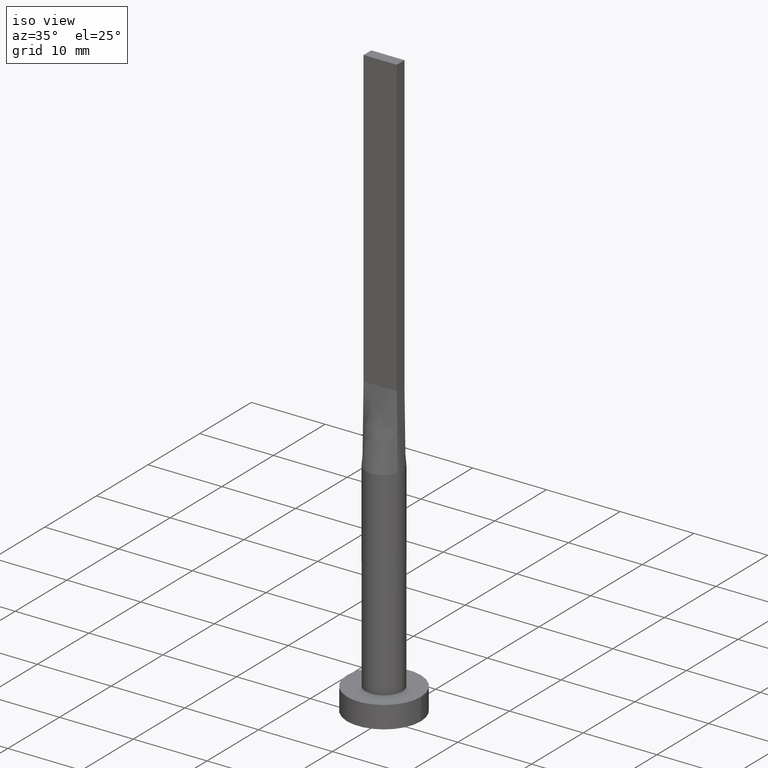
[diagram: clean part render]
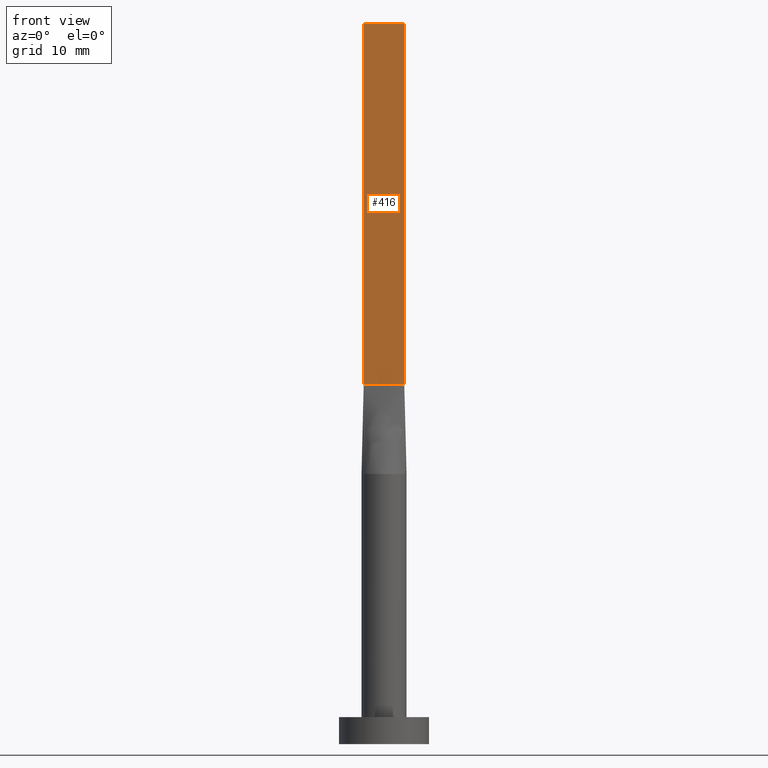
[diagram: tour spotlight — one face highlighted and labeled with its STEP entity id]
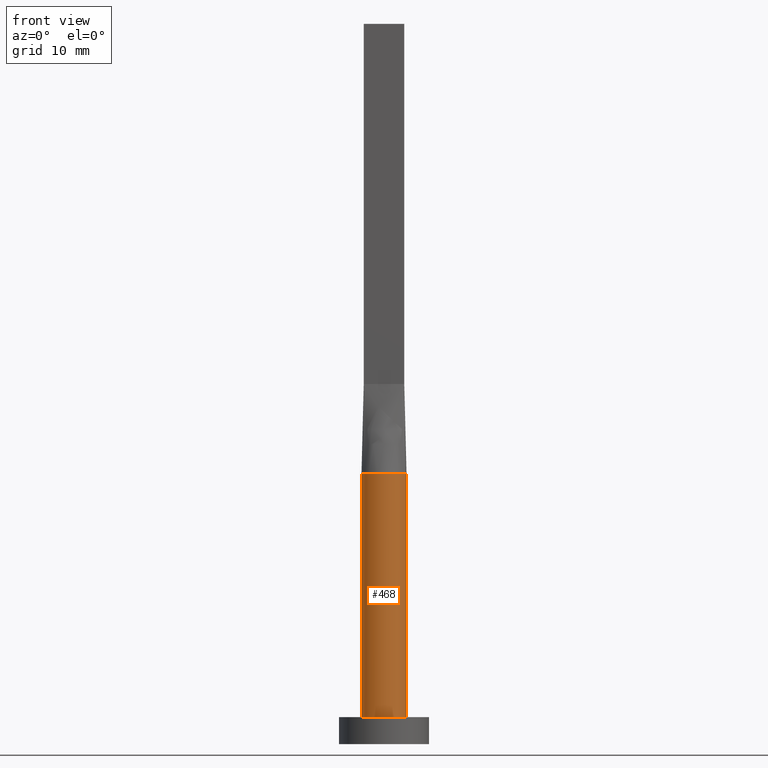
[diagram: tour spotlight — one face highlighted and labeled with its STEP entity id]
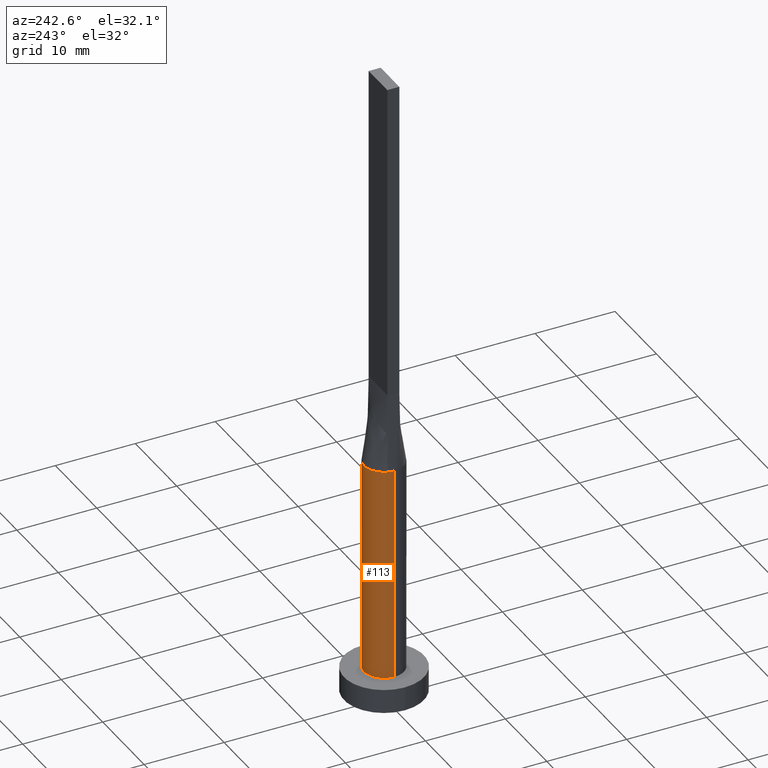
[diagram: tour spotlight — one face highlighted and labeled with its STEP entity id]
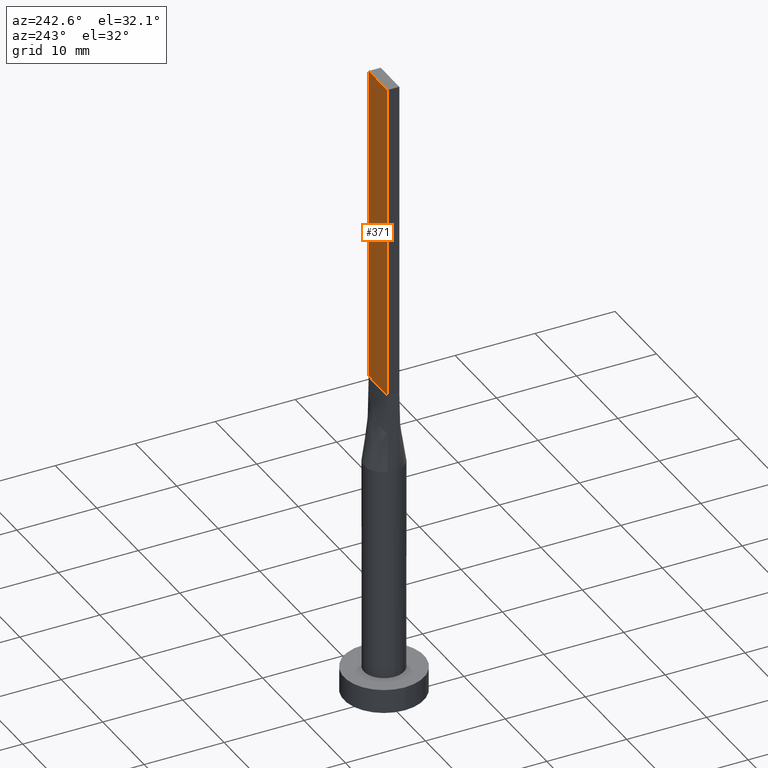
[diagram: tour spotlight — one face highlighted and labeled with its STEP entity id]
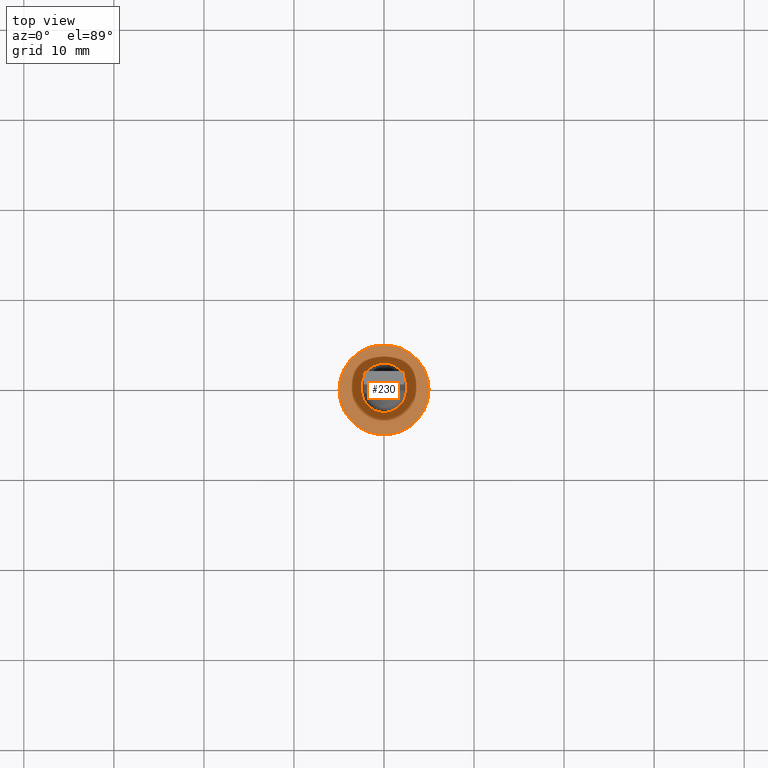
[diagram: tour spotlight — one face highlighted and labeled with its STEP entity id]
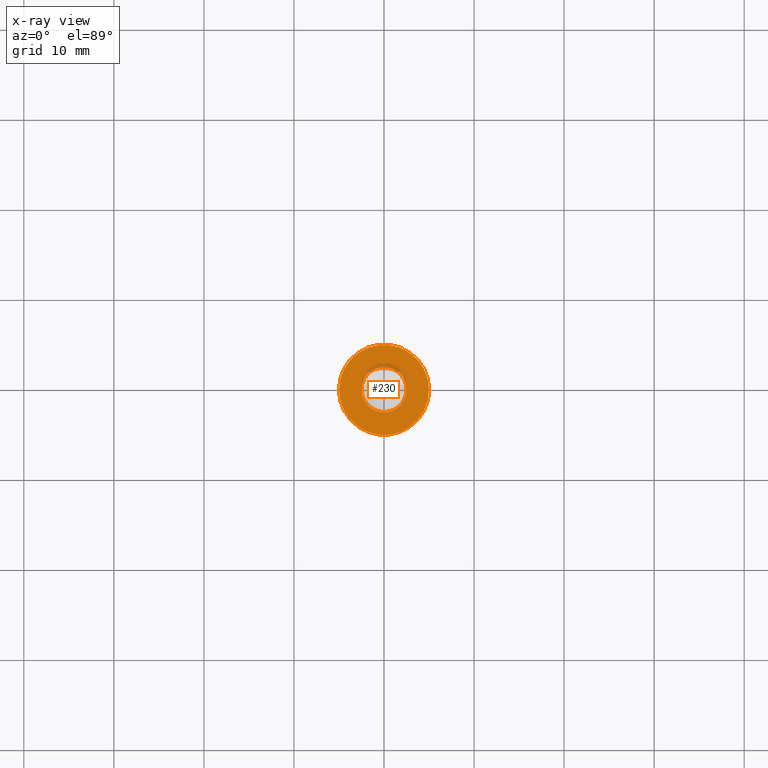
[diagram: x-ray of the same camera — body ghosted, this tour face saturated]
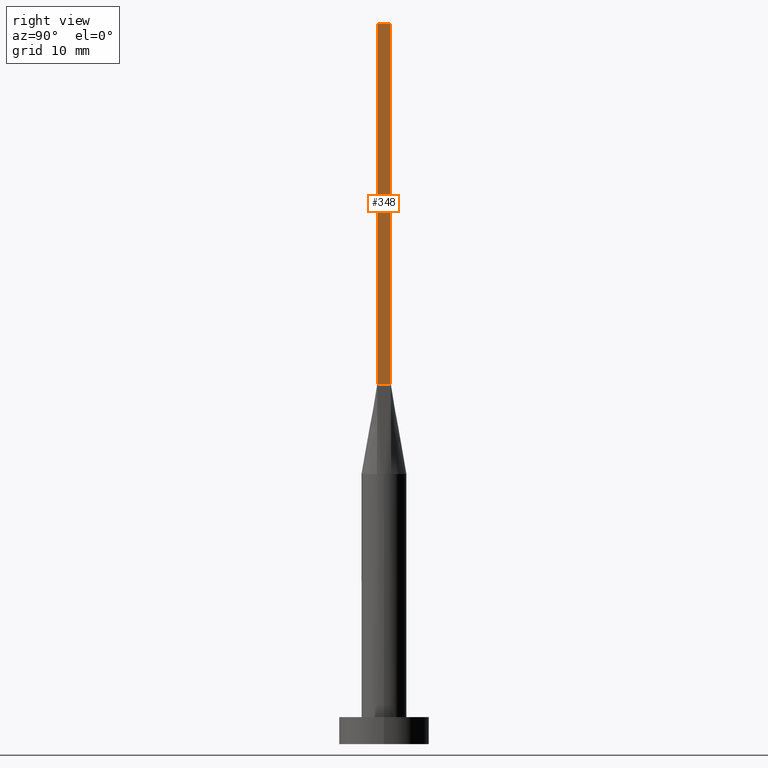
[diagram: tour spotlight — one face highlighted and labeled with its STEP entity id]
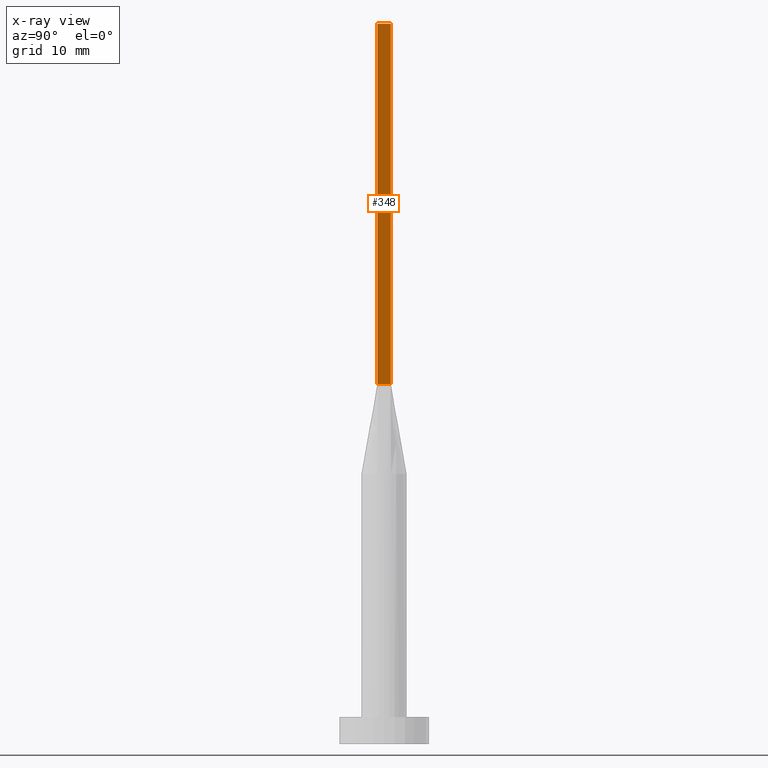
[diagram: x-ray of the same camera — body ghosted, this tour face saturated]
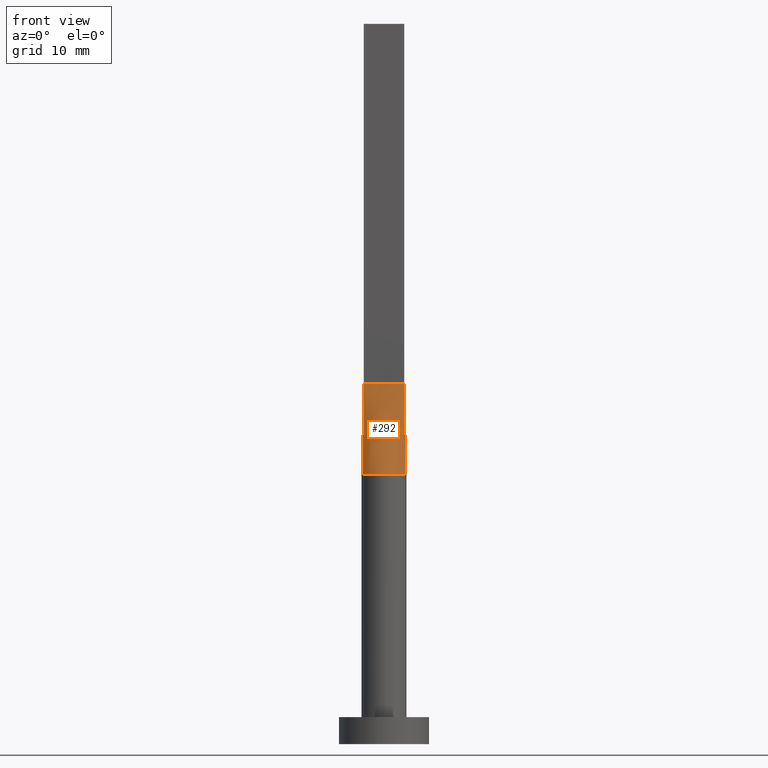
[diagram: tour spotlight — one face highlighted and labeled with its STEP entity id]
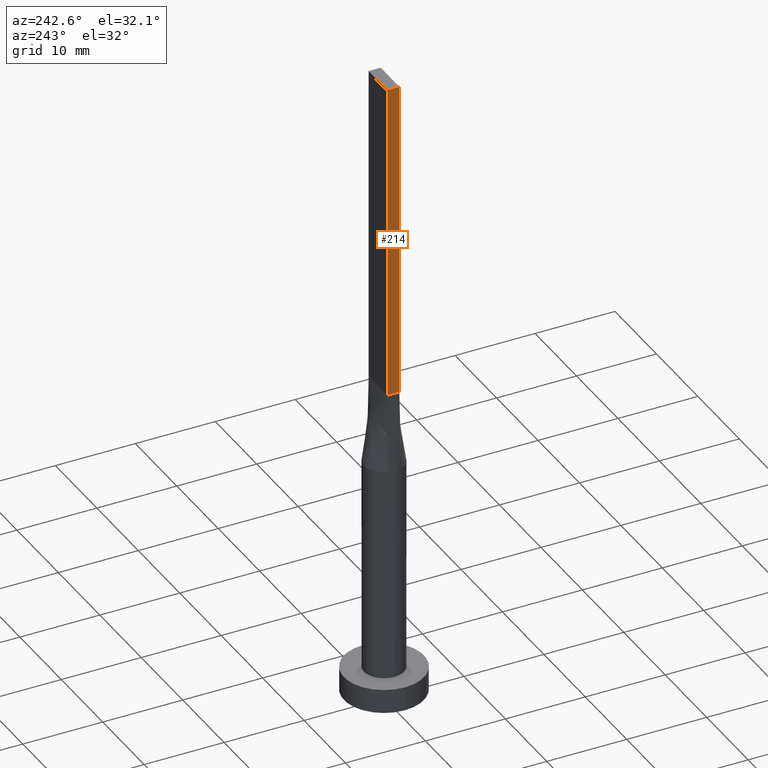
[diagram: tour spotlight — one face highlighted and labeled with its STEP entity id]
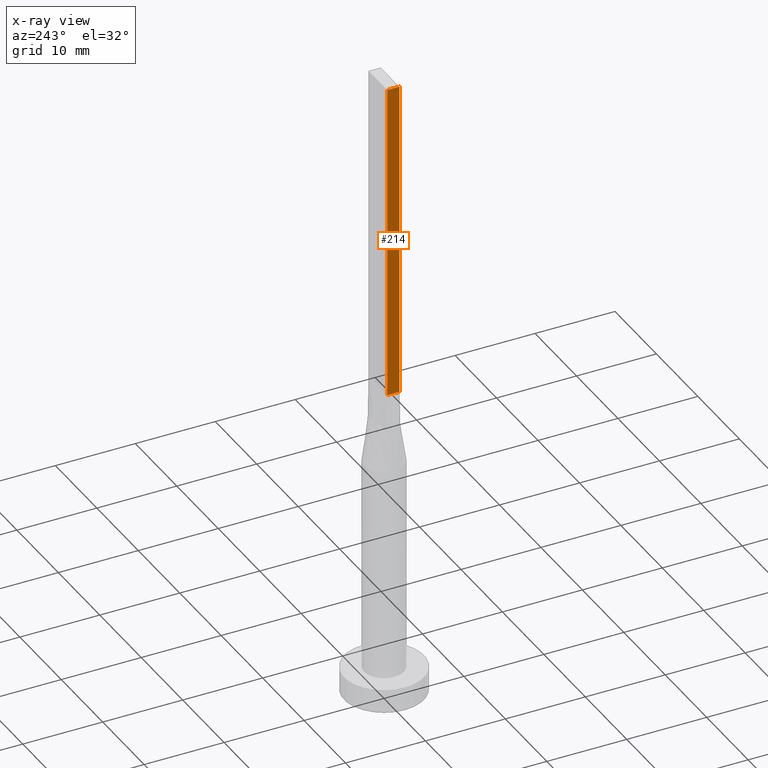
[diagram: x-ray of the same camera — body ghosted, this tour face saturated]
A machine part: a face-by-face anatomy tour. The part has 15 B-rep faces; the first image is the clean iso view, then the 8 largest visible faces are spotlighted one at a time (largest first), each with its STEP entity span.

Face 1 — front view, entity #416. In plain terms, the highlighted planar face has unit normal (0, 1, -0).
Definition (entity closure, byte-faithful):
#7 = CARTESIAN_POINT ( 'NONE',  ( -2.250000000000000000, -0.7499999999999995559, 80.00000000000000000 ) ) ;
#21 = CARTESIAN_POINT ( 'NONE',  ( 2.250000000000000000, -0.7499999999999997780, 80.00000000000000000 ) ) ;
#22 = CARTESIAN_POINT ( 'NONE',  ( 2.250000000000000000, -0.7499999999999997780, 40.00000000000000000 ) ) ;
#45 = EDGE_LOOP ( 'NONE', ( #133, #531, #490, #492 ) ) ;
#53 = VERTEX_POINT ( 'NONE', #138 ) ;
#74 = VECTOR ( 'NONE', #317, 1000.000000000000000 ) ;
#104 = DIRECTION ( 'NONE',  ( 4.818676322157797621E-17, 1.000000000000000000, -0.000000000000000000 ) ) ;
#133 = ORIENTED_EDGE ( 'NONE', *, *, #474, .T. ) ;
#138 = CARTESIAN_POINT ( 'NONE',  ( -2.250000000000000000, -0.7499999999999995559, 80.00000000000000000 ) ) ;
#142 = CARTESIAN_POINT ( 'NONE',  ( -2.250000000000000000, -0.7499999999999995559, 80.00000000000000000 ) ) ;
#161 = DIRECTION ( 'NONE',  ( -0.000000000000000000, -0.000000000000000000, -1.000000000000000000 ) ) ;
#168 = VECTOR ( 'NONE', #161, 1000.000000000000000 ) ;
#173 = VERTEX_POINT ( 'NONE', #22 ) ;
#244 = VERTEX_POINT ( 'NONE', #427 ) ;
#247 = CARTESIAN_POINT ( 'NONE',  ( -2.250000000000000000, -0.7499999999999995559, 40.00000000000000000 ) ) ;
#255 = VECTOR ( 'NONE', #445, 1000.000000000000000 ) ;
#270 = LINE ( 'NONE', #401, #74 ) ;
#279 = DIRECTION ( 'NONE',  ( -1.000000000000000000, 4.818676322157797621E-17, 0.000000000000000000 ) ) ;
#317 = DIRECTION ( 'NONE',  ( 1.000000000000000000, -4.818676322157797621E-17, 0.000000000000000000 ) ) ;
#323 = CARTESIAN_POINT ( 'NONE',  ( 2.250000000000000000, -0.7499999999999997780, 80.00000000000000000 ) ) ;
#351 = LINE ( 'NONE', #7, #255 ) ;
#360 = FACE_OUTER_BOUND ( 'NONE', #45, .T. ) ;
#391 = EDGE_CURVE ( 'NONE', #53, #476, #270, .T. ) ;
#401 = CARTESIAN_POINT ( 'NONE',  ( -2.250000000000000000, -0.7499999999999995559, 80.00000000000000000 ) ) ;
#408 = EDGE_CURVE ( 'NONE', #53, #244, #351, .T. ) ;
#416 = ADVANCED_FACE ( 'NONE', ( #360 ), #544, .F. ) ;
#424 = LINE ( 'NONE', #323, #168 ) ;
#427 = CARTESIAN_POINT ( 'NONE',  ( -2.250000000000000000, -0.7499999999999995559, 40.00000000000000000 ) ) ;
#445 = DIRECTION ( 'NONE',  ( -0.000000000000000000, -0.000000000000000000, -1.000000000000000000 ) ) ;
#456 = LINE ( 'NONE', #247, #564 ) ;
#457 = EDGE_CURVE ( 'NONE', #476, #173, #424, .T. ) ;
#474 = EDGE_CURVE ( 'NONE', #244, #173, #456, .T. ) ;
#476 = VERTEX_POINT ( 'NONE', #21 ) ;
#490 = ORIENTED_EDGE ( 'NONE', *, *, #391, .F. ) ;
#492 = ORIENTED_EDGE ( 'NONE', *, *, #408, .T. ) ;
#526 = AXIS2_PLACEMENT_3D ( 'NONE', #142, #104, #279 ) ;
#531 = ORIENTED_EDGE ( 'NONE', *, *, #457, .F. ) ;
#544 = PLANE ( 'NONE',  #526 ) ;
#558 = DIRECTION ( 'NONE',  ( 1.000000000000000000, -4.818676322157797621E-17, 0.000000000000000000 ) ) ;
#564 = VECTOR ( 'NONE', #558, 1000.000000000000000 ) ;

Face 2 — front view, entity #468. In plain terms, the highlighted cylindrical surface (edge-blend (fillet) strip) has radius 2.5 mm, axis along (-0, -0, -1).
Definition (entity closure, byte-faithful):
#23 = AXIS2_PLACEMENT_3D ( 'NONE', #500, #331, #552 ) ;
#39 = VERTEX_POINT ( 'NONE', #234 ) ;
#43 = EDGE_CURVE ( 'NONE', #311, #346, #59, .T. ) ;
#59 = LINE ( 'NONE', #410, #114 ) ;
#60 = CARTESIAN_POINT ( 'NONE',  ( -2.500000000000000444, -1.570839010700814298E-16, 30.00000000000000000 ) ) ;
#65 = CARTESIAN_POINT ( 'NONE',  ( 0.000000000000000000, 0.000000000000000000, 30.00000000000000000 ) ) ;
#76 = VECTOR ( 'NONE', #464, 1000.000000000000000 ) ;
#95 = CIRCLE ( 'NONE', #413, 2.500000000000000000 ) ;
#103 = AXIS2_PLACEMENT_3D ( 'NONE', #504, #377, #512 ) ;
#114 = VECTOR ( 'NONE', #539, 1000.000000000000000 ) ;
#136 = EDGE_CURVE ( 'NONE', #446, #311, #149, .T. ) ;
#148 = CIRCLE ( 'NONE', #23, 2.500000000000000000 ) ;
#149 = CIRCLE ( 'NONE', #103, 2.500000000000000000 ) ;
#152 = CARTESIAN_POINT ( 'NONE',  ( -2.371775648085652222, -0.7905922034696525325, 30.00000000000000000 ) ) ;
#167 = LINE ( 'NONE', #459, #76 ) ;
#187 = CIRCLE ( 'NONE', #567, 2.500000000000000000 ) ;
#206 = EDGE_CURVE ( 'NONE', #437, #39, #167, .T. ) ;
#212 = CARTESIAN_POINT ( 'NONE',  ( 0.000000000000000000, 0.000000000000000000, 30.00000000000000000 ) ) ;
#219 = DIRECTION ( 'NONE',  ( 1.000000000000000000, 0.000000000000000000, 0.000000000000000000 ) ) ;
#224 = CARTESIAN_POINT ( 'NONE',  ( 2.500000000000000000, 3.061616997868383141E-16, 3.000000000000000000 ) ) ;
#233 = CARTESIAN_POINT ( 'NONE',  ( 2.371798206859841329, -0.7905998626979697796, 30.00000000000000000 ) ) ;
#234 = CARTESIAN_POINT ( 'NONE',  ( -2.500000000000000000, 0.000000000000000000, 3.000000000000000000 ) ) ;
#236 = EDGE_CURVE ( 'NONE', #565, #446, #187, .T. ) ;
#254 = ORIENTED_EDGE ( 'NONE', *, *, #206, .T. ) ;
#260 = CARTESIAN_POINT ( 'NONE',  ( 0.000000000000000000, 0.000000000000000000, 30.00000000000000000 ) ) ;
#281 = EDGE_CURVE ( 'NONE', #437, #565, #95, .T. ) ;
#296 = DIRECTION ( 'NONE',  ( 1.000000000000000000, 0.000000000000000000, 0.000000000000000000 ) ) ;
#311 = VERTEX_POINT ( 'NONE', #386 ) ;
#321 = CYLINDRICAL_SURFACE ( 'NONE', #527, 2.500000000000000000 ) ;
#331 = DIRECTION ( 'NONE',  ( 0.000000000000000000, 0.000000000000000000, 1.000000000000000000 ) ) ;
#340 = ORIENTED_EDGE ( 'NONE', *, *, #236, .F. ) ;
#346 = VERTEX_POINT ( 'NONE', #224 ) ;
#349 = DIRECTION ( 'NONE',  ( 0.000000000000000000, 0.000000000000000000, 1.000000000000000000 ) ) ;
#377 = DIRECTION ( 'NONE',  ( 0.000000000000000000, 0.000000000000000000, 1.000000000000000000 ) ) ;
#386 = CARTESIAN_POINT ( 'NONE',  ( 2.499999999999999556, 3.110810548879990207E-17, 30.00000000000000000 ) ) ;
#390 = ORIENTED_EDGE ( 'NONE', *, *, #540, .T. ) ;
#410 = CARTESIAN_POINT ( 'NONE',  ( 2.500000000000000000, 3.061616997868383141E-16, 30.00000000000000000 ) ) ;
#413 = AXIS2_PLACEMENT_3D ( 'NONE', #212, #475, #296 ) ;
#414 = DIRECTION ( 'NONE',  ( -1.000000000000000000, 0.000000000000000000, 0.000000000000000000 ) ) ;
#417 = DIRECTION ( 'NONE',  ( -0.000000000000000000, -0.000000000000000000, -1.000000000000000000 ) ) ;
#437 = VERTEX_POINT ( 'NONE', #60 ) ;
#444 = ORIENTED_EDGE ( 'NONE', *, *, #43, .F. ) ;
#446 = VERTEX_POINT ( 'NONE', #233 ) ;
#459 = CARTESIAN_POINT ( 'NONE',  ( -2.500000000000000000, 0.000000000000000000, 30.00000000000000000 ) ) ;
#464 = DIRECTION ( 'NONE',  ( -0.000000000000000000, -0.000000000000000000, -1.000000000000000000 ) ) ;
#468 = ADVANCED_FACE ( 'NONE', ( #503 ), #321, .T. ) ;
#475 = DIRECTION ( 'NONE',  ( 0.000000000000000000, 0.000000000000000000, 1.000000000000000000 ) ) ;
#495 = ORIENTED_EDGE ( 'NONE', *, *, #281, .F. ) ;
#500 = CARTESIAN_POINT ( 'NONE',  ( 0.000000000000000000, 0.000000000000000000, 3.000000000000000000 ) ) ;
#503 = FACE_OUTER_BOUND ( 'NONE', #523, .T. ) ;
#504 = CARTESIAN_POINT ( 'NONE',  ( 0.000000000000000000, 0.000000000000000000, 30.00000000000000000 ) ) ;
#512 = DIRECTION ( 'NONE',  ( 1.000000000000000000, -4.440892098500626162E-15, 0.000000000000000000 ) ) ;
#523 = EDGE_LOOP ( 'NONE', ( #444, #542, #340, #495, #254, #390 ) ) ;
#527 = AXIS2_PLACEMENT_3D ( 'NONE', #65, #417, #414 ) ;
#539 = DIRECTION ( 'NONE',  ( -0.000000000000000000, -0.000000000000000000, -1.000000000000000000 ) ) ;
#540 = EDGE_CURVE ( 'NONE', #39, #346, #148, .T. ) ;
#542 = ORIENTED_EDGE ( 'NONE', *, *, #136, .F. ) ;
#552 = DIRECTION ( 'NONE',  ( 1.000000000000000000, 0.000000000000000000, 0.000000000000000000 ) ) ;
#565 = VERTEX_POINT ( 'NONE', #152 ) ;
#567 = AXIS2_PLACEMENT_3D ( 'NONE', #260, #349, #219 ) ;

Face 3 — auxiliary view, entity #113. In plain terms, the highlighted cylindrical surface (edge-blend (fillet) strip) has radius 2.5 mm, axis along (-0, -0, -1).
Definition (entity closure, byte-faithful):
#1 = CARTESIAN_POINT ( 'NONE',  ( 1.799471046981194977, 1.755719709239274007, 30.00000000000000355 ) ) ;
#8 = DIRECTION ( 'NONE',  ( 0.000000000000000000, 0.000000000000000000, 1.000000000000000000 ) ) ;
#11 = EDGE_LOOP ( 'NONE', ( #36, #361, #92, #124, #229, #525 ) ) ;
#13 = CARTESIAN_POINT ( 'NONE',  ( 0.000000000000000000, 0.000000000000000000, 30.00000000000000000 ) ) ;
#18 = AXIS2_PLACEMENT_3D ( 'NONE', #330, #249, #553 ) ;
#36 = ORIENTED_EDGE ( 'NONE', *, *, #266, .F. ) ;
#39 = VERTEX_POINT ( 'NONE', #234 ) ;
#43 = EDGE_CURVE ( 'NONE', #311, #346, #59, .T. ) ;
#47 = AXIS2_PLACEMENT_3D ( 'NONE', #462, #370, #68 ) ;
#51 = CARTESIAN_POINT ( 'NONE',  ( -1.390086206340438890, 2.094828891646495883, 30.00000000000000355 ) ) ;
#52 = EDGE_CURVE ( 'NONE', #101, #437, #432, .T. ) ;
#54 = CARTESIAN_POINT ( 'NONE',  ( 2.218933079238281980, 1.174882007252000315, 29.99999999999999289 ) ) ;
#56 = AXIS2_PLACEMENT_3D ( 'NONE', #515, #394, #345 ) ;
#57 = AXIS2_PLACEMENT_3D ( 'NONE', #13, #8, #269 ) ;
#59 = LINE ( 'NONE', #410, #114 ) ;
#60 = CARTESIAN_POINT ( 'NONE',  ( -2.500000000000000444, -1.570839010700814298E-16, 30.00000000000000000 ) ) ;
#68 = DIRECTION ( 'NONE',  ( -1.000000000000000000, 0.000000000000000000, 0.000000000000000000 ) ) ;
#71 = CARTESIAN_POINT ( 'NONE',  ( -2.371795432964766359, 0.7905989074952441964, 30.00000000000000000 ) ) ;
#75 = CYLINDRICAL_SURFACE ( 'NONE', #47, 2.500000000000000000 ) ;
#76 = VECTOR ( 'NONE', #464, 1000.000000000000000 ) ;
#92 = ORIENTED_EDGE ( 'NONE', *, *, #156, .T. ) ;
#93 = CARTESIAN_POINT ( 'NONE',  ( -2.371795432964766359, 0.7905989074952441964, 30.00000000000000000 ) ) ;
#100 = CARTESIAN_POINT ( 'NONE',  ( 1.964343640889990361, 1.563766543189047287, 29.99999999999998934 ) ) ;
#101 = VERTEX_POINT ( 'NONE', #71 ) ;
#113 = ADVANCED_FACE ( 'NONE', ( #324 ), #75, .T. ) ;
#114 = VECTOR ( 'NONE', #539, 1000.000000000000000 ) ;
#124 = ORIENTED_EDGE ( 'NONE', *, *, #206, .F. ) ;
#134 = CARTESIAN_POINT ( 'NONE',  ( 1.145194483530141749, 2.241235424885160921, 30.00000000000000355 ) ) ;
#137 = CARTESIAN_POINT ( 'NONE',  ( -1.964343640889990805, 1.563766543189048175, 30.00000000000000000 ) ) ;
#156 = EDGE_CURVE ( 'NONE', #346, #39, #423, .T. ) ;
#167 = LINE ( 'NONE', #459, #76 ) ;
#183 = CARTESIAN_POINT ( 'NONE',  ( -0.3003163416900526128, 2.499999999999999112, 29.99999999999999645 ) ) ;
#188 = CARTESIAN_POINT ( 'NONE',  ( -2.309208245126284975, 0.9780694150420951027, 30.00000000000000355 ) ) ;
#206 = EDGE_CURVE ( 'NONE', #437, #39, #167, .T. ) ;
#224 = CARTESIAN_POINT ( 'NONE',  ( 2.500000000000000000, 3.061616997868383141E-16, 3.000000000000000000 ) ) ;
#226 = CARTESIAN_POINT ( 'NONE',  ( -2.218933079238281536, 1.174882007251999871, 29.99999999999999645 ) ) ;
#228 = CARTESIAN_POINT ( 'NONE',  ( 2.371772892450305648, 0.7905912578404317159, 30.00000000000000000 ) ) ;
#229 = ORIENTED_EDGE ( 'NONE', *, *, #52, .F. ) ;
#231 = CARTESIAN_POINT ( 'NONE',  ( 2.371772892450305648, 0.7905912578404317159, 30.00000000000000000 ) ) ;
#234 = CARTESIAN_POINT ( 'NONE',  ( -2.500000000000000000, 0.000000000000000000, 3.000000000000000000 ) ) ;
#249 = DIRECTION ( 'NONE',  ( 0.000000000000000000, 0.000000000000000000, 1.000000000000000000 ) ) ;
#266 = EDGE_CURVE ( 'NONE', #311, #430, #507, .T. ) ;
#267 = CARTESIAN_POINT ( 'NONE',  ( 0.3003163416900527238, 2.499999999999999556, 30.00000000000000355 ) ) ;
#269 = DIRECTION ( 'NONE',  ( 1.000000000000000000, 0.000000000000000000, 0.000000000000000000 ) ) ;
#273 = B_SPLINE_CURVE_WITH_KNOTS ( 'NONE', 3,
 ( #228, #534, #54, #100, #1, #541, #134, #452, #267, #183, #310, #319, #51, #497, #137, #226, #188, #93 ),
 .UNSPECIFIED., .F., .F.,
 ( 4, 2, 2, 2, 2, 2, 2, 2, 4 ),
 ( 0.000000000000000000, 0.1250000000000000000, 0.2500000000000000000, 0.3750000000000000000, 0.5000000000000000000, 0.6250000000000000000, 0.7500000000000000000, 0.8750000000000000000, 1.000000000000000000 ),
 .UNSPECIFIED. ) ;
#310 = CARTESIAN_POINT ( 'NONE',  ( -0.6000386972366482663, 2.444291348568452094, 30.00000000000000000 ) ) ;
#311 = VERTEX_POINT ( 'NONE', #386 ) ;
#319 = CARTESIAN_POINT ( 'NONE',  ( -1.145194483530141527, 2.241235424885160921, 29.99999999999999645 ) ) ;
#324 = FACE_OUTER_BOUND ( 'NONE', #11, .T. ) ;
#330 = CARTESIAN_POINT ( 'NONE',  ( 0.000000000000000000, 0.000000000000000000, 3.000000000000000000 ) ) ;
#345 = DIRECTION ( 'NONE',  ( 1.000000000000000000, 0.000000000000000000, 0.000000000000000000 ) ) ;
#346 = VERTEX_POINT ( 'NONE', #224 ) ;
#361 = ORIENTED_EDGE ( 'NONE', *, *, #43, .T. ) ;
#365 = EDGE_CURVE ( 'NONE', #430, #101, #273, .T. ) ;
#370 = DIRECTION ( 'NONE',  ( -0.000000000000000000, -0.000000000000000000, -1.000000000000000000 ) ) ;
#386 = CARTESIAN_POINT ( 'NONE',  ( 2.499999999999999556, 3.110810548879990207E-17, 30.00000000000000000 ) ) ;
#394 = DIRECTION ( 'NONE',  ( 0.000000000000000000, 0.000000000000000000, 1.000000000000000000 ) ) ;
#410 = CARTESIAN_POINT ( 'NONE',  ( 2.500000000000000000, 3.061616997868383141E-16, 30.00000000000000000 ) ) ;
#423 = CIRCLE ( 'NONE', #18, 2.500000000000000000 ) ;
#430 = VERTEX_POINT ( 'NONE', #231 ) ;
#432 = CIRCLE ( 'NONE', #57, 2.500000000000000000 ) ;
#437 = VERTEX_POINT ( 'NONE', #60 ) ;
#452 = CARTESIAN_POINT ( 'NONE',  ( 0.6000386972366480443, 2.444291348568451649, 29.99999999999999645 ) ) ;
#459 = CARTESIAN_POINT ( 'NONE',  ( -2.500000000000000000, 0.000000000000000000, 30.00000000000000000 ) ) ;
#462 = CARTESIAN_POINT ( 'NONE',  ( 0.000000000000000000, 0.000000000000000000, 30.00000000000000000 ) ) ;
#464 = DIRECTION ( 'NONE',  ( -0.000000000000000000, -0.000000000000000000, -1.000000000000000000 ) ) ;
#497 = CARTESIAN_POINT ( 'NONE',  ( -1.799471046981195199, 1.755719709239274229, 30.00000000000001066 ) ) ;
#507 = CIRCLE ( 'NONE', #56, 2.500000000000000000 ) ;
#515 = CARTESIAN_POINT ( 'NONE',  ( 0.000000000000000000, 0.000000000000000000, 30.00000000000000000 ) ) ;
#525 = ORIENTED_EDGE ( 'NONE', *, *, #365, .F. ) ;
#534 = CARTESIAN_POINT ( 'NONE',  ( 2.309208245126284975, 0.9780694150420948807, 29.99999999999999645 ) ) ;
#539 = DIRECTION ( 'NONE',  ( -0.000000000000000000, -0.000000000000000000, -1.000000000000000000 ) ) ;
#541 = CARTESIAN_POINT ( 'NONE',  ( 1.390086206340439112, 2.094828891646494995, 30.00000000000000355 ) ) ;
#553 = DIRECTION ( 'NONE',  ( 1.000000000000000000, 0.000000000000000000, 0.000000000000000000 ) ) ;

Face 4 — auxiliary view, entity #371. In plain terms, the highlighted planar face has unit normal (0, -1, 0).
Definition (entity closure, byte-faithful):
#4 = CARTESIAN_POINT ( 'NONE',  ( -2.249999999999999556, 0.7500000000000002220, 80.00000000000000000 ) ) ;
#12 = LINE ( 'NONE', #532, #496 ) ;
#46 = VECTOR ( 'NONE', #185, 1000.000000000000000 ) ;
#58 = LINE ( 'NONE', #353, #129 ) ;
#88 = VERTEX_POINT ( 'NONE', #232 ) ;
#116 = CARTESIAN_POINT ( 'NONE',  ( 2.249999999999999556, 0.7500000000000002220, 80.00000000000000000 ) ) ;
#129 = VECTOR ( 'NONE', #275, 1000.000000000000000 ) ;
#147 = ORIENTED_EDGE ( 'NONE', *, *, #399, .F. ) ;
#185 = DIRECTION ( 'NONE',  ( -0.000000000000000000, -0.000000000000000000, -1.000000000000000000 ) ) ;
#190 = CARTESIAN_POINT ( 'NONE',  ( 2.249999999999999556, 0.7500000000000002220, 80.00000000000000000 ) ) ;
#223 = ORIENTED_EDGE ( 'NONE', *, *, #450, .T. ) ;
#232 = CARTESIAN_POINT ( 'NONE',  ( -2.249999999999999556, 0.7500000000000002220, 80.00000000000000000 ) ) ;
#246 = VECTOR ( 'NONE', #463, 1000.000000000000000 ) ;
#275 = DIRECTION ( 'NONE',  ( -1.000000000000000000, -0.000000000000000000, -0.000000000000000000 ) ) ;
#280 = ORIENTED_EDGE ( 'NONE', *, *, #579, .F. ) ;
#290 = DIRECTION ( 'NONE',  ( -0.000000000000000000, -0.000000000000000000, -1.000000000000000000 ) ) ;
#305 = ORIENTED_EDGE ( 'NONE', *, *, #329, .T. ) ;
#312 = PLANE ( 'NONE',  #448 ) ;
#315 = DIRECTION ( 'NONE',  ( 0.000000000000000000, -1.000000000000000000, 0.000000000000000000 ) ) ;
#329 = EDGE_CURVE ( 'NONE', #573, #352, #58, .T. ) ;
#344 = EDGE_LOOP ( 'NONE', ( #305, #147, #280, #223 ) ) ;
#352 = VERTEX_POINT ( 'NONE', #441 ) ;
#353 = CARTESIAN_POINT ( 'NONE',  ( -2.249999999999999556, 0.7500000000000002220, 40.00000000000000000 ) ) ;
#371 = ADVANCED_FACE ( 'NONE', ( #404 ), #312, .F. ) ;
#399 = EDGE_CURVE ( 'NONE', #88, #352, #491, .T. ) ;
#404 = FACE_OUTER_BOUND ( 'NONE', #344, .T. ) ;
#409 = DIRECTION ( 'NONE',  ( 0.000000000000000000, -0.000000000000000000, -1.000000000000000000 ) ) ;
#422 = VERTEX_POINT ( 'NONE', #447 ) ;
#441 = CARTESIAN_POINT ( 'NONE',  ( -2.249999999999999556, 0.7500000000000002220, 40.00000000000000000 ) ) ;
#447 = CARTESIAN_POINT ( 'NONE',  ( 2.249999999999999556, 0.7500000000000002220, 80.00000000000000000 ) ) ;
#448 = AXIS2_PLACEMENT_3D ( 'NONE', #190, #315, #409 ) ;
#450 = EDGE_CURVE ( 'NONE', #422, #573, #12, .T. ) ;
#463 = DIRECTION ( 'NONE',  ( -1.000000000000000000, 0.000000000000000000, 0.000000000000000000 ) ) ;
#491 = LINE ( 'NONE', #4, #46 ) ;
#496 = VECTOR ( 'NONE', #290, 1000.000000000000000 ) ;
#508 = LINE ( 'NONE', #116, #246 ) ;
#532 = CARTESIAN_POINT ( 'NONE',  ( 2.249999999999999556, 0.7500000000000002220, 80.00000000000000000 ) ) ;
#554 = CARTESIAN_POINT ( 'NONE',  ( 2.249999999999999556, 0.7500000000000002220, 40.00000000000000000 ) ) ;
#573 = VERTEX_POINT ( 'NONE', #554 ) ;
#579 = EDGE_CURVE ( 'NONE', #422, #88, #508, .T. ) ;

Face 5 — top view, entity #230. An x-ray twin of the same camera follows (body ghosted, this face saturated) — the face is partly hidden behind the body. In plain terms, the highlighted planar face has unit normal (0, 0, 1).
Definition (entity closure, byte-faithful):
#18 = AXIS2_PLACEMENT_3D ( 'NONE', #330, #249, #553 ) ;
#23 = AXIS2_PLACEMENT_3D ( 'NONE', #500, #331, #552 ) ;
#39 = VERTEX_POINT ( 'NONE', #234 ) ;
#130 = ORIENTED_EDGE ( 'NONE', *, *, #156, .F. ) ;
#148 = CIRCLE ( 'NONE', #23, 2.500000000000000000 ) ;
#154 = FACE_OUTER_BOUND ( 'NONE', #484, .T. ) ;
#156 = EDGE_CURVE ( 'NONE', #346, #39, #423, .T. ) ;
#158 = PLANE ( 'NONE',  #538 ) ;
#176 = ORIENTED_EDGE ( 'NONE', *, *, #566, .T. ) ;
#200 = DIRECTION ( 'NONE',  ( 0.000000000000000000, 0.000000000000000000, 1.000000000000000000 ) ) ;
#211 = CIRCLE ( 'NONE', #337, 5.000000000000000000 ) ;
#217 = VERTEX_POINT ( 'NONE', #368 ) ;
#224 = CARTESIAN_POINT ( 'NONE',  ( 2.500000000000000000, 3.061616997868383141E-16, 3.000000000000000000 ) ) ;
#230 = ADVANCED_FACE ( 'NONE', ( #551, #154 ), #158, .T. ) ;
#234 = CARTESIAN_POINT ( 'NONE',  ( -2.500000000000000000, 0.000000000000000000, 3.000000000000000000 ) ) ;
#241 = CARTESIAN_POINT ( 'NONE',  ( 0.000000000000000000, 0.000000000000000000, 3.000000000000000000 ) ) ;
#245 = EDGE_CURVE ( 'NONE', #217, #397, #211, .T. ) ;
#249 = DIRECTION ( 'NONE',  ( 0.000000000000000000, 0.000000000000000000, 1.000000000000000000 ) ) ;
#268 = AXIS2_PLACEMENT_3D ( 'NONE', #241, #200, #372 ) ;
#299 = ORIENTED_EDGE ( 'NONE', *, *, #245, .T. ) ;
#327 = CARTESIAN_POINT ( 'NONE',  ( 0.000000000000000000, 0.000000000000000000, 3.000000000000000000 ) ) ;
#330 = CARTESIAN_POINT ( 'NONE',  ( 0.000000000000000000, 0.000000000000000000, 3.000000000000000000 ) ) ;
#331 = DIRECTION ( 'NONE',  ( 0.000000000000000000, 0.000000000000000000, 1.000000000000000000 ) ) ;
#337 = AXIS2_PLACEMENT_3D ( 'NONE', #469, #572, #472 ) ;
#346 = VERTEX_POINT ( 'NONE', #224 ) ;
#368 = CARTESIAN_POINT ( 'NONE',  ( -5.000000000000000000, 0.000000000000000000, 3.000000000000000000 ) ) ;
#372 = DIRECTION ( 'NONE',  ( 1.000000000000000000, 0.000000000000000000, 0.000000000000000000 ) ) ;
#389 = DIRECTION ( 'NONE',  ( 1.000000000000000000, 0.000000000000000000, -0.000000000000000000 ) ) ;
#397 = VERTEX_POINT ( 'NONE', #493 ) ;
#423 = CIRCLE ( 'NONE', #18, 2.500000000000000000 ) ;
#429 = DIRECTION ( 'NONE',  ( 0.000000000000000000, 0.000000000000000000, 1.000000000000000000 ) ) ;
#453 = ORIENTED_EDGE ( 'NONE', *, *, #540, .F. ) ;
#467 = CIRCLE ( 'NONE', #268, 5.000000000000000000 ) ;
#469 = CARTESIAN_POINT ( 'NONE',  ( 0.000000000000000000, 0.000000000000000000, 3.000000000000000000 ) ) ;
#472 = DIRECTION ( 'NONE',  ( 1.000000000000000000, 0.000000000000000000, 0.000000000000000000 ) ) ;
#484 = EDGE_LOOP ( 'NONE', ( #299, #176 ) ) ;
#493 = CARTESIAN_POINT ( 'NONE',  ( 5.000000000000000000, 6.123233995736766282E-16, 3.000000000000000000 ) ) ;
#500 = CARTESIAN_POINT ( 'NONE',  ( 0.000000000000000000, 0.000000000000000000, 3.000000000000000000 ) ) ;
#538 = AXIS2_PLACEMENT_3D ( 'NONE', #327, #429, #389 ) ;
#540 = EDGE_CURVE ( 'NONE', #39, #346, #148, .T. ) ;
#545 = EDGE_LOOP ( 'NONE', ( #453, #130 ) ) ;
#551 = FACE_BOUND ( 'NONE', #545, .T. ) ;
#552 = DIRECTION ( 'NONE',  ( 1.000000000000000000, 0.000000000000000000, 0.000000000000000000 ) ) ;
#553 = DIRECTION ( 'NONE',  ( 1.000000000000000000, 0.000000000000000000, 0.000000000000000000 ) ) ;
#566 = EDGE_CURVE ( 'NONE', #397, #217, #467, .T. ) ;
#572 = DIRECTION ( 'NONE',  ( 0.000000000000000000, 0.000000000000000000, 1.000000000000000000 ) ) ;

Face 6 — right view, entity #348. An x-ray twin of the same camera follows (body ghosted, this face saturated) — the face is partly hidden behind the body. In plain terms, the highlighted planar face has unit normal (-1, -0, 0).
Definition (entity closure, byte-faithful):
#10 = DIRECTION ( 'NONE',  ( -1.000000000000000000, -2.891205793294678326E-16, 0.000000000000000000 ) ) ;
#12 = LINE ( 'NONE', #532, #496 ) ;
#21 = CARTESIAN_POINT ( 'NONE',  ( 2.250000000000000000, -0.7499999999999997780, 80.00000000000000000 ) ) ;
#22 = CARTESIAN_POINT ( 'NONE',  ( 2.250000000000000000, -0.7499999999999997780, 40.00000000000000000 ) ) ;
#25 = ORIENTED_EDGE ( 'NONE', *, *, #450, .F. ) ;
#32 = ORIENTED_EDGE ( 'NONE', *, *, #79, .T. ) ;
#49 = PLANE ( 'NONE',  #431 ) ;
#79 = EDGE_CURVE ( 'NONE', #173, #573, #442, .T. ) ;
#96 = FACE_OUTER_BOUND ( 'NONE', #378, .T. ) ;
#99 = CARTESIAN_POINT ( 'NONE',  ( 2.249999999999999556, 0.7500000000000002220, 40.00000000000000000 ) ) ;
#106 = CARTESIAN_POINT ( 'NONE',  ( 2.250000000000000000, -0.7499999999999997780, 80.00000000000000000 ) ) ;
#150 = DIRECTION ( 'NONE',  ( -2.891205793294678326E-16, 1.000000000000000000, 0.000000000000000000 ) ) ;
#161 = DIRECTION ( 'NONE',  ( -0.000000000000000000, -0.000000000000000000, -1.000000000000000000 ) ) ;
#168 = VECTOR ( 'NONE', #161, 1000.000000000000000 ) ;
#173 = VERTEX_POINT ( 'NONE', #22 ) ;
#194 = VECTOR ( 'NONE', #150, 1000.000000000000000 ) ;
#235 = LINE ( 'NONE', #106, #194 ) ;
#262 = ORIENTED_EDGE ( 'NONE', *, *, #457, .T. ) ;
#272 = DIRECTION ( 'NONE',  ( 2.891205793294678326E-16, -1.000000000000000000, 0.000000000000000000 ) ) ;
#290 = DIRECTION ( 'NONE',  ( -0.000000000000000000, -0.000000000000000000, -1.000000000000000000 ) ) ;
#323 = CARTESIAN_POINT ( 'NONE',  ( 2.250000000000000000, -0.7499999999999997780, 80.00000000000000000 ) ) ;
#348 = ADVANCED_FACE ( 'NONE', ( #96 ), #49, .F. ) ;
#366 = DIRECTION ( 'NONE',  ( -2.891205793294678326E-16, 1.000000000000000000, -0.000000000000000000 ) ) ;
#378 = EDGE_LOOP ( 'NONE', ( #32, #25, #533, #262 ) ) ;
#422 = VERTEX_POINT ( 'NONE', #447 ) ;
#424 = LINE ( 'NONE', #323, #168 ) ;
#431 = AXIS2_PLACEMENT_3D ( 'NONE', #486, #10, #272 ) ;
#442 = LINE ( 'NONE', #99, #578 ) ;
#447 = CARTESIAN_POINT ( 'NONE',  ( 2.249999999999999556, 0.7500000000000002220, 80.00000000000000000 ) ) ;
#450 = EDGE_CURVE ( 'NONE', #422, #573, #12, .T. ) ;
#457 = EDGE_CURVE ( 'NONE', #476, #173, #424, .T. ) ;
#476 = VERTEX_POINT ( 'NONE', #21 ) ;
#486 = CARTESIAN_POINT ( 'NONE',  ( 2.250000000000000000, -0.7499999999999997780, 80.00000000000000000 ) ) ;
#496 = VECTOR ( 'NONE', #290, 1000.000000000000000 ) ;
#513 = EDGE_CURVE ( 'NONE', #476, #422, #235, .T. ) ;
#532 = CARTESIAN_POINT ( 'NONE',  ( 2.249999999999999556, 0.7500000000000002220, 80.00000000000000000 ) ) ;
#533 = ORIENTED_EDGE ( 'NONE', *, *, #513, .F. ) ;
#554 = CARTESIAN_POINT ( 'NONE',  ( 2.249999999999999556, 0.7500000000000002220, 40.00000000000000000 ) ) ;
#573 = VERTEX_POINT ( 'NONE', #554 ) ;
#578 = VECTOR ( 'NONE', #366, 1000.000000000000000 ) ;

Face 7 — front view, entity #292. In plain terms, the highlighted face is a freeform B-spline surface patch.
Definition (entity closure, byte-faithful):
#22 = CARTESIAN_POINT ( 'NONE',  ( 2.250000000000000000, -0.7499999999999997780, 40.00000000000000000 ) ) ;
#30 = EDGE_CURVE ( 'NONE', #244, #565, #61, .T. ) ;
#31 = CARTESIAN_POINT ( 'NONE',  ( -0.1875000000000000833, -0.7499999999999995559, 40.00000000000000000 ) ) ;
#34 = CARTESIAN_POINT ( 'NONE',  ( -2.309208245126285419, -0.9780694150420946587, 30.00000000000000355 ) ) ;
#38 = CARTESIAN_POINT ( 'NONE',  ( 1.964343640889991249, -1.563766543189047953, 30.00000000000000711 ) ) ;
#44 = CARTESIAN_POINT ( 'NONE',  ( -0.3003163416900532234, -2.499999999999999556, 30.00000000000000000 ) ) ;
#61 = LINE ( 'NONE', #276, #248 ) ;
#64 = VECTOR ( 'NONE', #454, 1000.000000000000114 ) ;
#78 = CARTESIAN_POINT ( 'NONE',  ( -0.9374999999999997780, -0.7499999999999995559, 40.00000000000000000 ) ) ;
#80 = CARTESIAN_POINT ( 'NONE',  ( 0.9374999999999998890, -0.7499999999999996669, 39.99999999999999289 ) ) ;
#83 = CARTESIAN_POINT ( 'NONE',  ( -1.390086206340439334, -2.094828891646495883, 30.00000000000000000 ) ) ;
#87 = CARTESIAN_POINT ( 'NONE',  ( 0.3749999999999996669, -0.7499999999999995559, 39.99999999999999289 ) ) ;
#91 = CARTESIAN_POINT ( 'NONE',  ( 2.250000000000000000, -0.7499999999999997780, 40.00000000000000000 ) ) ;
#123 = CARTESIAN_POINT ( 'NONE',  ( 2.371708245126284531, -0.7905694150420953248, 30.00000000000000000 ) ) ;
#126 = CARTESIAN_POINT ( 'NONE',  ( 1.799471046981195199, -1.755719709239274229, 30.00000000000000711 ) ) ;
#128 = CARTESIAN_POINT ( 'NONE',  ( -1.145194483530141305, -2.241235424885160477, 30.00000000000000355 ) ) ;
#132 = CARTESIAN_POINT ( 'NONE',  ( -1.499999999999999556, -0.7499999999999995559, 39.99999999999999289 ) ) ;
#152 = CARTESIAN_POINT ( 'NONE',  ( -2.371775648085652222, -0.7905922034696525325, 30.00000000000000000 ) ) ;
#169 = CARTESIAN_POINT ( 'NONE',  ( 1.499999999999999556, -0.7499999999999997780, 39.99999999999999289 ) ) ;
#173 = VERTEX_POINT ( 'NONE', #22 ) ;
#178 = CARTESIAN_POINT ( 'NONE',  ( 2.309208245126284087, -0.9780694150420953248, 29.99999999999999289 ) ) ;
#181 = CARTESIAN_POINT ( 'NONE',  ( -2.218933079238281980, -1.174882007251999427, 29.99999999999999645 ) ) ;
#187 = CIRCLE ( 'NONE', #567, 2.500000000000000000 ) ;
#195 = LINE ( 'NONE', #367, #64 ) ;
#209 = CARTESIAN_POINT ( 'NONE',  ( 2.218933079238280204, -1.174882007251999871, 29.99999999999998934 ) ) ;
#210 = EDGE_LOOP ( 'NONE', ( #428, #557, #434, #487 ) ) ;
#219 = DIRECTION ( 'NONE',  ( 1.000000000000000000, 0.000000000000000000, 0.000000000000000000 ) ) ;
#221 = CARTESIAN_POINT ( 'NONE',  ( -2.062499999999999556, -0.7499999999999995559, 40.00000000000000000 ) ) ;
#233 = CARTESIAN_POINT ( 'NONE',  ( 2.371798206859841329, -0.7905998626979697796, 30.00000000000000000 ) ) ;
#236 = EDGE_CURVE ( 'NONE', #565, #446, #187, .T. ) ;
#244 = VERTEX_POINT ( 'NONE', #427 ) ;
#247 = CARTESIAN_POINT ( 'NONE',  ( -2.250000000000000000, -0.7499999999999995559, 40.00000000000000000 ) ) ;
#248 = VECTOR ( 'NONE', #320, 1000.000000000000114 ) ;
#251 = CARTESIAN_POINT ( 'NONE',  ( -0.7499999999999997780, -0.7499999999999995559, 40.00000000000000000 ) ) ;
#256 = CARTESIAN_POINT ( 'NONE',  ( -1.964343640889991249, -1.563766543189046843, 29.99999999999999289 ) ) ;
#260 = CARTESIAN_POINT ( 'NONE',  ( 0.000000000000000000, 0.000000000000000000, 30.00000000000000000 ) ) ;
#264 = CARTESIAN_POINT ( 'NONE',  ( -0.3749999999999999445, -0.7499999999999995559, 40.00000000000000000 ) ) ;
#276 = CARTESIAN_POINT ( 'NONE',  ( -2.310854122563142266, -0.7702847075210469407, 35.00000000000000000 ) ) ;
#292 = ADVANCED_FACE ( 'NONE', ( #517 ), #521, .T. ) ;
#307 = CARTESIAN_POINT ( 'NONE',  ( 1.874999999999999556, -0.7499999999999997780, 39.99999999999999289 ) ) ;
#320 = DIRECTION ( 'NONE',  ( -0.01216982305197525371, -0.004056607683991732445, -0.9999177162851859979 ) ) ;
#339 = CARTESIAN_POINT ( 'NONE',  ( -2.371708245126284975, -0.7905694150420944366, 30.00000000000000000 ) ) ;
#342 = CARTESIAN_POINT ( 'NONE',  ( 0.3003163416900518912, -2.500000000000001332, 30.00000000000000355 ) ) ;
#349 = DIRECTION ( 'NONE',  ( 0.000000000000000000, 0.000000000000000000, 1.000000000000000000 ) ) ;
#367 = CARTESIAN_POINT ( 'NONE',  ( 2.310854122563142266, -0.7702847075210476069, 35.00000000000000000 ) ) ;
#382 = CARTESIAN_POINT ( 'NONE',  ( 2.062499999999999556, -0.7499999999999997780, 39.99999999999999289 ) ) ;
#396 = CARTESIAN_POINT ( 'NONE',  ( 0.6000386972366476002, -2.444291348568452538, 30.00000000000000355 ) ) ;
#427 = CARTESIAN_POINT ( 'NONE',  ( -2.250000000000000000, -0.7499999999999995559, 40.00000000000000000 ) ) ;
#428 = ORIENTED_EDGE ( 'NONE', *, *, #236, .T. ) ;
#433 = CARTESIAN_POINT ( 'NONE',  ( 1.312499999999999778, -0.7499999999999997780, 39.99999999999999289 ) ) ;
#434 = ORIENTED_EDGE ( 'NONE', *, *, #474, .F. ) ;
#436 = CARTESIAN_POINT ( 'NONE',  ( 1.390086206340438890, -2.094828891646495883, 30.00000000000000355 ) ) ;
#438 = CARTESIAN_POINT ( 'NONE',  ( -2.250000000000000000, -0.7499999999999995559, 40.00000000000000000 ) ) ;
#446 = VERTEX_POINT ( 'NONE', #233 ) ;
#454 = DIRECTION ( 'NONE',  ( -0.01216982305197521208, 0.004056607683991797497, 0.9999177162851859979 ) ) ;
#456 = LINE ( 'NONE', #247, #564 ) ;
#474 = EDGE_CURVE ( 'NONE', #244, #173, #456, .T. ) ;
#479 = CARTESIAN_POINT ( 'NONE',  ( -1.874999999999999556, -0.7499999999999995559, 40.00000000000000000 ) ) ;
#483 = CARTESIAN_POINT ( 'NONE',  ( -1.799471046981195421, -1.755719709239273785, 30.00000000000000355 ) ) ;
#485 = EDGE_CURVE ( 'NONE', #446, #173, #195, .T. ) ;
#487 = ORIENTED_EDGE ( 'NONE', *, *, #30, .T. ) ;
#517 = FACE_OUTER_BOUND ( 'NONE', #210, .T. ) ;
#521 = B_SPLINE_SURFACE_WITH_KNOTS ( 'NONE', 3, 1, ( 
 ( #339, #438 ),
 ( #34, #221 ),
 ( #181, #479 ),
 ( #256, #132 ),
 ( #483, #522 ),
 ( #83, #78 ),
 ( #128, #251 ),
 ( #575, #264 ),
 ( #44, #31 ),
 ( #342, #524 ),
 ( #396, #87 ),
 ( #530, #563 ),
 ( #436, #80 ),
 ( #126, #433 ),
 ( #38, #169 ),
 ( #209, #307 ),
 ( #178, #382 ),
 ( #123, #91 ) ),
 .UNSPECIFIED., .F., .F., .F.,
 ( 4, 2, 2, 2, 2, 2, 2, 2, 4 ),
 ( 2, 2 ),
 ( 0.000000000000000000, 0.1250000000000000555, 0.2500000000000001110, 0.3750000000000001110, 0.5000000000000001110, 0.6250000000000000000, 0.7500000000000000000, 0.8749999999999998890, 1.000000000000000000 ),
 ( 0.000000000000000000, 1.000000000000000000 ),
 .UNSPECIFIED. ) ;
#522 = CARTESIAN_POINT ( 'NONE',  ( -1.312499999999999778, -0.7499999999999995559, 40.00000000000000000 ) ) ;
#524 = CARTESIAN_POINT ( 'NONE',  ( 0.1874999999999997224, -0.7499999999999995559, 39.99999999999999289 ) ) ;
#530 = CARTESIAN_POINT ( 'NONE',  ( 1.145194483530141083, -2.241235424885161365, 30.00000000000000000 ) ) ;
#557 = ORIENTED_EDGE ( 'NONE', *, *, #485, .T. ) ;
#558 = DIRECTION ( 'NONE',  ( 1.000000000000000000, -4.818676322157797621E-17, 0.000000000000000000 ) ) ;
#563 = CARTESIAN_POINT ( 'NONE',  ( 0.7499999999999996669, -0.7499999999999995559, 39.99999999999999289 ) ) ;
#564 = VECTOR ( 'NONE', #558, 1000.000000000000000 ) ;
#565 = VERTEX_POINT ( 'NONE', #152 ) ;
#567 = AXIS2_PLACEMENT_3D ( 'NONE', #260, #349, #219 ) ;
#575 = CARTESIAN_POINT ( 'NONE',  ( -0.6000386972366480443, -2.444291348568451649, 29.99999999999998934 ) ) ;

Face 8 — auxiliary view, entity #214. An x-ray twin of the same camera follows (body ghosted, this face saturated) — the face is partly hidden behind the body. In plain terms, the highlighted planar face has unit normal (1, -0, 0).
Definition (entity closure, byte-faithful):
#4 = CARTESIAN_POINT ( 'NONE',  ( -2.249999999999999556, 0.7500000000000002220, 80.00000000000000000 ) ) ;
#7 = CARTESIAN_POINT ( 'NONE',  ( -2.250000000000000000, -0.7499999999999995559, 80.00000000000000000 ) ) ;
#16 = CARTESIAN_POINT ( 'NONE',  ( -2.249999999999999556, 0.7500000000000002220, 40.00000000000000000 ) ) ;
#46 = VECTOR ( 'NONE', #185, 1000.000000000000000 ) ;
#53 = VERTEX_POINT ( 'NONE', #138 ) ;
#69 = EDGE_CURVE ( 'NONE', #88, #53, #405, .T. ) ;
#88 = VERTEX_POINT ( 'NONE', #232 ) ;
#107 = CARTESIAN_POINT ( 'NONE',  ( -2.249999999999999556, 0.7500000000000002220, 80.00000000000000000 ) ) ;
#138 = CARTESIAN_POINT ( 'NONE',  ( -2.250000000000000000, -0.7499999999999995559, 80.00000000000000000 ) ) ;
#163 = AXIS2_PLACEMENT_3D ( 'NONE', #107, #199, #412 ) ;
#180 = ORIENTED_EDGE ( 'NONE', *, *, #69, .F. ) ;
#185 = DIRECTION ( 'NONE',  ( -0.000000000000000000, -0.000000000000000000, -1.000000000000000000 ) ) ;
#199 = DIRECTION ( 'NONE',  ( 1.000000000000000000, -2.891205793294678819E-16, 0.000000000000000000 ) ) ;
#201 = PLANE ( 'NONE',  #163 ) ;
#202 = DIRECTION ( 'NONE',  ( -2.891205793294678819E-16, -1.000000000000000000, 0.000000000000000000 ) ) ;
#214 = ADVANCED_FACE ( 'NONE', ( #335 ), #201, .F. ) ;
#220 = ORIENTED_EDGE ( 'NONE', *, *, #519, .T. ) ;
#227 = CARTESIAN_POINT ( 'NONE',  ( -2.249999999999999556, 0.7500000000000002220, 80.00000000000000000 ) ) ;
#232 = CARTESIAN_POINT ( 'NONE',  ( -2.249999999999999556, 0.7500000000000002220, 80.00000000000000000 ) ) ;
#244 = VERTEX_POINT ( 'NONE', #427 ) ;
#255 = VECTOR ( 'NONE', #445, 1000.000000000000000 ) ;
#302 = ORIENTED_EDGE ( 'NONE', *, *, #399, .T. ) ;
#335 = FACE_OUTER_BOUND ( 'NONE', #402, .T. ) ;
#351 = LINE ( 'NONE', #7, #255 ) ;
#352 = VERTEX_POINT ( 'NONE', #441 ) ;
#354 = DIRECTION ( 'NONE',  ( -2.891205793294678819E-16, -1.000000000000000000, 0.000000000000000000 ) ) ;
#369 = LINE ( 'NONE', #16, #516 ) ;
#375 = VECTOR ( 'NONE', #354, 1000.000000000000000 ) ;
#399 = EDGE_CURVE ( 'NONE', #88, #352, #491, .T. ) ;
#402 = EDGE_LOOP ( 'NONE', ( #220, #570, #180, #302 ) ) ;
#405 = LINE ( 'NONE', #227, #375 ) ;
#408 = EDGE_CURVE ( 'NONE', #53, #244, #351, .T. ) ;
#412 = DIRECTION ( 'NONE',  ( 2.891205793294678819E-16, 1.000000000000000000, 0.000000000000000000 ) ) ;
#427 = CARTESIAN_POINT ( 'NONE',  ( -2.250000000000000000, -0.7499999999999995559, 40.00000000000000000 ) ) ;
#441 = CARTESIAN_POINT ( 'NONE',  ( -2.249999999999999556, 0.7500000000000002220, 40.00000000000000000 ) ) ;
#445 = DIRECTION ( 'NONE',  ( -0.000000000000000000, -0.000000000000000000, -1.000000000000000000 ) ) ;
#491 = LINE ( 'NONE', #4, #46 ) ;
#516 = VECTOR ( 'NONE', #202, 1000.000000000000000 ) ;
#519 = EDGE_CURVE ( 'NONE', #352, #244, #369, .T. ) ;
#570 = ORIENTED_EDGE ( 'NONE', *, *, #408, .F. ) ;